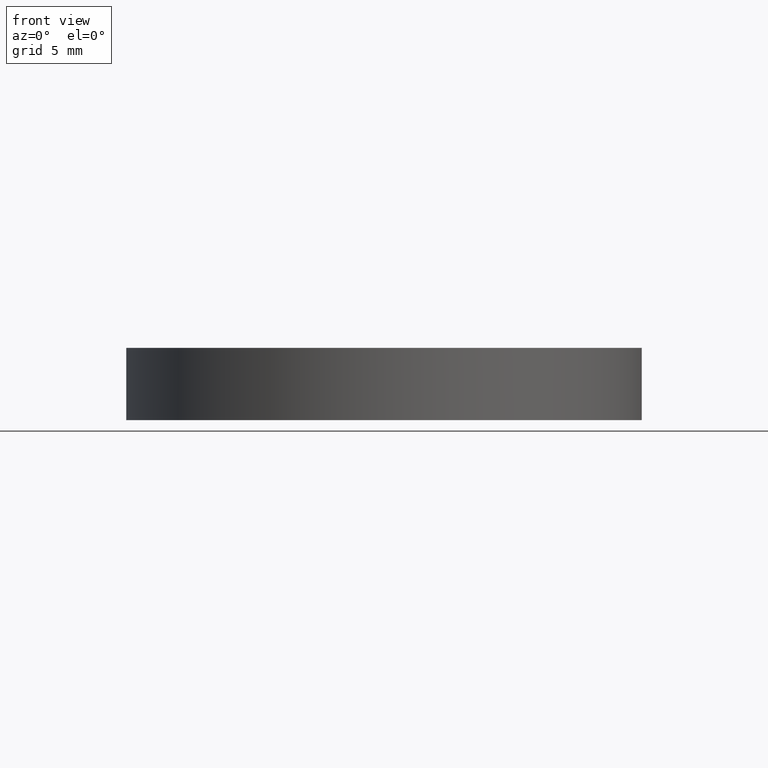
[diagram: clean part render]
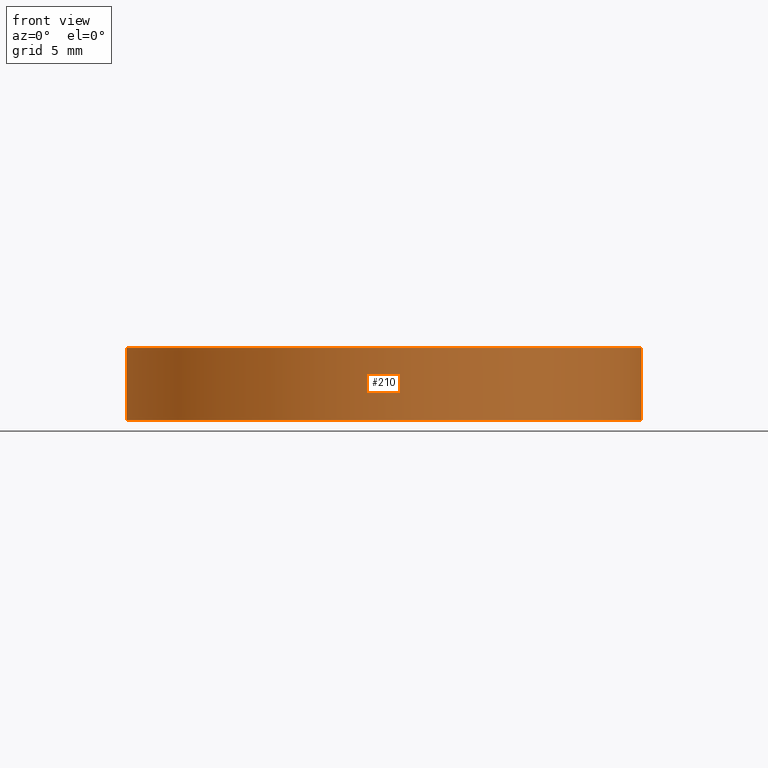
[diagram: same view with one face highlighted and labeled with its STEP entity id]
A machine part, front view. The second image highlights one B-rep face of the part: STEP entity #210.
In plain terms, the highlighted cylindrical surface (partial cylindrical patch) has radius 12.5 mm, axis along (-0, -0, -1).
Its self-contained STEP definition (entity closure, byte-faithful):
#1 = FACE_OUTER_BOUND ( 'NONE', #230, .T. ) ;
#7 = AXIS2_PLACEMENT_3D ( 'NONE', #173, #273, #400 ) ;
#14 = VECTOR ( 'NONE', #311, 1000.000000000000000 ) ;
#21 = AXIS2_PLACEMENT_3D ( 'NONE', #90, #341, #184 ) ;
#23 = EDGE_CURVE ( 'NONE', #324, #151, #369, .T. ) ;
#37 = CIRCLE ( 'NONE', #21, 12.50000000000000000 ) ;
#58 = DIRECTION ( 'NONE',  ( -0.000000000000000000, -0.000000000000000000, -1.000000000000000000 ) ) ;
#60 = CARTESIAN_POINT ( 'NONE',  ( -12.50000000000000000, 0.000000000000000000, 3.500000000000000000 ) ) ;
#76 = EDGE_CURVE ( 'NONE', #138, #151, #235, .T. ) ;
#78 = CARTESIAN_POINT ( 'NONE',  ( 12.50000000000000000, 1.530808498934191521E-15, 3.500000000000000000 ) ) ;
#85 = ORIENTED_EDGE ( 'NONE', *, *, #23, .T. ) ;
#90 = CARTESIAN_POINT ( 'NONE',  ( 0.000000000000000000, 0.000000000000000000, 3.500000000000000000 ) ) ;
#138 = VERTEX_POINT ( 'NONE', #78 ) ;
#151 = VERTEX_POINT ( 'NONE', #371 ) ;
#154 = CARTESIAN_POINT ( 'NONE',  ( 0.000000000000000000, 0.000000000000000000, 3.500000000000000000 ) ) ;
#170 = ORIENTED_EDGE ( 'NONE', *, *, #288, .F. ) ;
#173 = CARTESIAN_POINT ( 'NONE',  ( 0.000000000000000000, 0.000000000000000000, 0.000000000000000000 ) ) ;
#180 = CARTESIAN_POINT ( 'NONE',  ( -12.50000000000000000, 0.000000000000000000, 3.500000000000000000 ) ) ;
#184 = DIRECTION ( 'NONE',  ( 1.000000000000000000, 0.000000000000000000, 0.000000000000000000 ) ) ;
#210 = ADVANCED_FACE ( 'NONE', ( #1 ), #318, .T. ) ;
#211 = LINE ( 'NONE', #60, #346 ) ;
#230 = EDGE_LOOP ( 'NONE', ( #265, #170, #335, #85 ) ) ;
#235 = LINE ( 'NONE', #239, #14 ) ;
#239 = CARTESIAN_POINT ( 'NONE',  ( 12.50000000000000000, 1.530808498934191521E-15, 3.500000000000000000 ) ) ;
#243 = CARTESIAN_POINT ( 'NONE',  ( -12.50000000000000000, 0.000000000000000000, 0.000000000000000000 ) ) ;
#252 = DIRECTION ( 'NONE',  ( -1.000000000000000000, 0.000000000000000000, 0.000000000000000000 ) ) ;
#265 = ORIENTED_EDGE ( 'NONE', *, *, #76, .F. ) ;
#266 = AXIS2_PLACEMENT_3D ( 'NONE', #154, #416, #252 ) ;
#273 = DIRECTION ( 'NONE',  ( 0.000000000000000000, 0.000000000000000000, 1.000000000000000000 ) ) ;
#288 = EDGE_CURVE ( 'NONE', #390, #138, #37, .T. ) ;
#311 = DIRECTION ( 'NONE',  ( -0.000000000000000000, -0.000000000000000000, -1.000000000000000000 ) ) ;
#318 = CYLINDRICAL_SURFACE ( 'NONE', #266, 12.50000000000000000 ) ;
#324 = VERTEX_POINT ( 'NONE', #243 ) ;
#335 = ORIENTED_EDGE ( 'NONE', *, *, #350, .T. ) ;
#341 = DIRECTION ( 'NONE',  ( 0.000000000000000000, 0.000000000000000000, 1.000000000000000000 ) ) ;
#346 = VECTOR ( 'NONE', #58, 1000.000000000000000 ) ;
#350 = EDGE_CURVE ( 'NONE', #390, #324, #211, .T. ) ;
#369 = CIRCLE ( 'NONE', #7, 12.50000000000000000 ) ;
#371 = CARTESIAN_POINT ( 'NONE',  ( 12.50000000000000000, 1.530808498934191521E-15, 0.000000000000000000 ) ) ;
#390 = VERTEX_POINT ( 'NONE', #180 ) ;
#400 = DIRECTION ( 'NONE',  ( 1.000000000000000000, 0.000000000000000000, 0.000000000000000000 ) ) ;
#416 = DIRECTION ( 'NONE',  ( -0.000000000000000000, -0.000000000000000000, -1.000000000000000000 ) ) ;